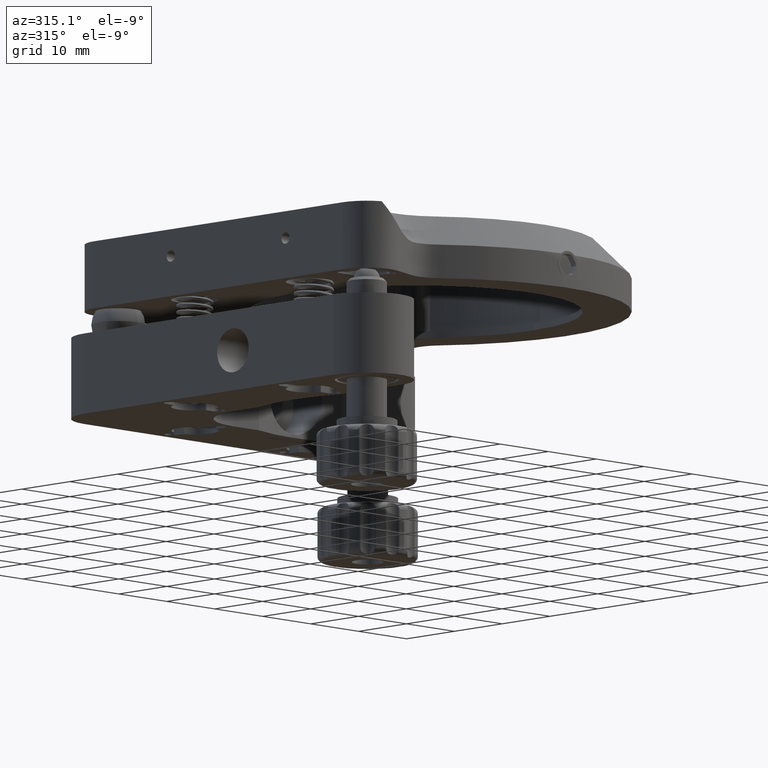
[diagram: clean part render]
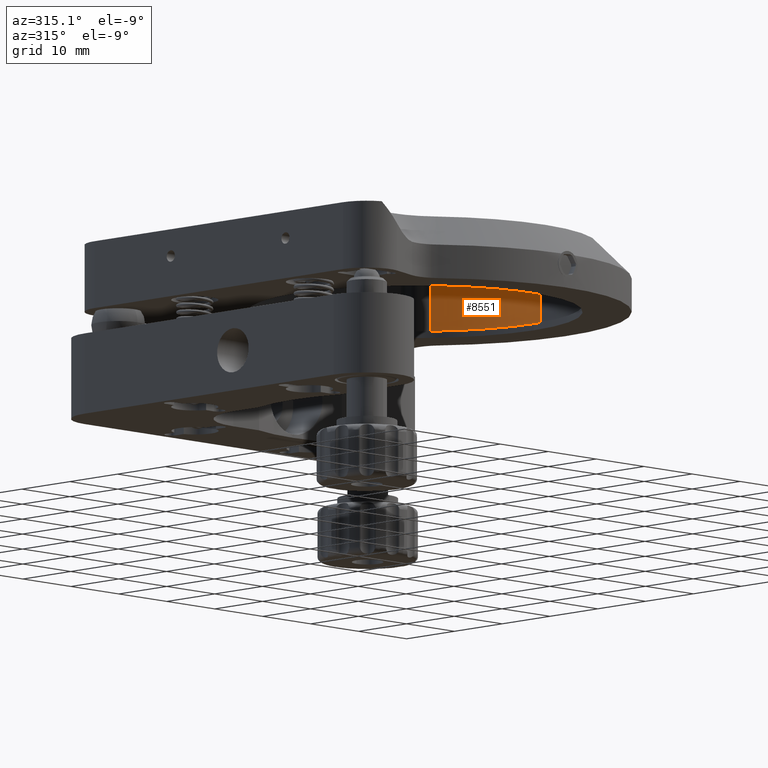
[diagram: same view with one face highlighted and labeled with its STEP entity id]
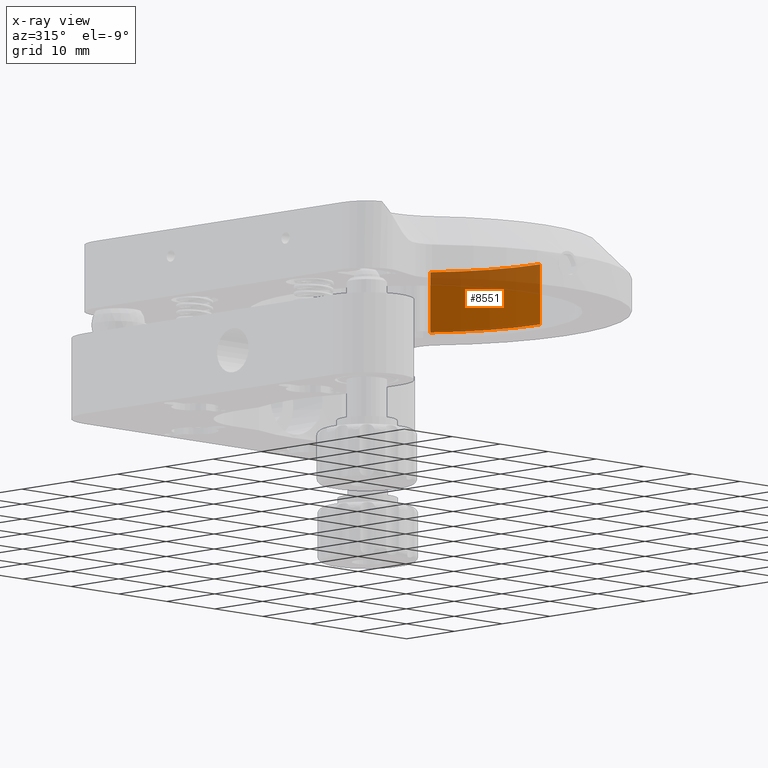
[diagram: x-ray of the same camera — body ghosted, the highlighted face saturated]
A machine part, auxiliary view. The second image highlights one B-rep face of the part: STEP entity #8551.
The next image is the same camera in x-ray: the body ghosted, the highlighted face saturated — about 32% of this face is hidden behind the body in this view.
In plain terms, the highlighted cylindrical surface (partial cylindrical patch) has radius 26.035 mm, axis along (-0, -0, 1).
Its self-contained STEP definition (entity closure, byte-faithful):
#132 = VERTEX_POINT ( 'NONE', #8523 ) ;
#548 = DIRECTION ( 'NONE',  ( -1.772866405933790834E-16, -8.922568092179399976E-17, 1.000000000000000000 ) ) ;
#616 = AXIS2_PLACEMENT_3D ( 'NONE', #27988, #2558, #22491 ) ;
#1209 = DIRECTION ( 'NONE',  ( -1.772866405933790834E-16, -8.922568092179399976E-17, 1.000000000000000000 ) ) ;
#1490 = ORIENTED_EDGE ( 'NONE', *, *, #20019, .T. ) ;
#2558 = DIRECTION ( 'NONE',  ( -1.772866405933790834E-16, -8.922568092179399976E-17, 1.000000000000000000 ) ) ;
#3794 = DIRECTION ( 'NONE',  ( -1.772866405933790834E-16, -8.922568092179399976E-17, 1.000000000000000000 ) ) ;
#4020 = ORIENTED_EDGE ( 'NONE', *, *, #28600, .F. ) ;
#4359 = DIRECTION ( 'NONE',  ( -1.772866405933790834E-16, -8.922568092179399976E-17, 1.000000000000000000 ) ) ;
#6728 = LINE ( 'NONE', #25619, #25233 ) ;
#6941 = ORIENTED_EDGE ( 'NONE', *, *, #26901, .T. ) ;
#7317 = EDGE_CURVE ( 'NONE', #132, #30879, #6728, .T. ) ;
#7853 = VERTEX_POINT ( 'NONE', #19378 ) ;
#8007 = CYLINDRICAL_SURFACE ( 'NONE', #616, 26.03500000000000014 ) ;
#8523 = CARTESIAN_POINT ( 'NONE',  ( 50.89416044711609288, -14.20584610334887543, 0.9999999999999915623 ) ) ;
#8551 = ADVANCED_FACE ( 'NONE', ( #22149 ), #8007, .F. ) ;
#9112 = AXIS2_PLACEMENT_3D ( 'NONE', #24324, #4359, #12756 ) ;
#9976 = CARTESIAN_POINT ( 'NONE',  ( 57.03499999999998948, -31.00000000000001776, 9.999999999999998224 ) ) ;
#11634 = DIRECTION ( 'NONE',  ( -1.000000000000000000, -7.995652664383208770E-16, 2.082201214683127315E-16 ) ) ;
#12756 = DIRECTION ( 'NONE',  ( -1.000000000000000000, -7.995652664383208770E-16, 1.998913166095802193E-16 ) ) ;
#14142 = VERTEX_POINT ( 'NONE', #9976 ) ;
#19378 = CARTESIAN_POINT ( 'NONE',  ( 57.03499999999998948, -31.00000000000001776, 1.000000000000000666 ) ) ;
#19818 = ORIENTED_EDGE ( 'NONE', *, *, #7317, .F. ) ;
#20019 = EDGE_CURVE ( 'NONE', #14142, #30879, #24945, .T. ) ;
#21260 = CARTESIAN_POINT ( 'NONE',  ( 50.89416044711609288, -14.20584610334887543, 9.999999999999992895 ) ) ;
#22149 = FACE_OUTER_BOUND ( 'NONE', #31744, .T. ) ;
#22491 = DIRECTION ( 'NONE',  ( -1.000000000000000000, -7.995652664383208770E-16, 2.082201214683127315E-16 ) ) ;
#24324 = CARTESIAN_POINT ( 'NONE',  ( 30.99999999999998934, -31.00000000000003553, 9.999999999999992895 ) ) ;
#24945 = CIRCLE ( 'NONE', #9112, 26.03500000000000014 ) ;
#25233 = VECTOR ( 'NONE', #548, 1000.000000000000000 ) ;
#25619 = CARTESIAN_POINT ( 'NONE',  ( 50.89416044711609288, -14.20584610334887543, 0.9999999999999915623 ) ) ;
#26901 = EDGE_CURVE ( 'NONE', #7853, #14142, #32147, .T. ) ;
#27988 = CARTESIAN_POINT ( 'NONE',  ( 30.99999999999998934, -31.00000000000003553, 0.9999999999999961142 ) ) ;
#28600 = EDGE_CURVE ( 'NONE', #7853, #132, #30963, .T. ) ;
#28715 = CARTESIAN_POINT ( 'NONE',  ( 30.99999999999998934, -31.00000000000003553, 0.9999999999999961142 ) ) ;
#30879 = VERTEX_POINT ( 'NONE', #21260 ) ;
#30963 = CIRCLE ( 'NONE', #35051, 26.03500000000000014 ) ;
#31744 = EDGE_LOOP ( 'NONE', ( #4020, #6941, #1490, #19818 ) ) ;
#32147 = LINE ( 'NONE', #34717, #34213 ) ;
#34213 = VECTOR ( 'NONE', #1209, 1000.000000000000000 ) ;
#34717 = CARTESIAN_POINT ( 'NONE',  ( 57.03499999999998948, -31.00000000000001776, 0.9999999999999906741 ) ) ;
#35051 = AXIS2_PLACEMENT_3D ( 'NONE', #28715, #3794, #11634 ) ;